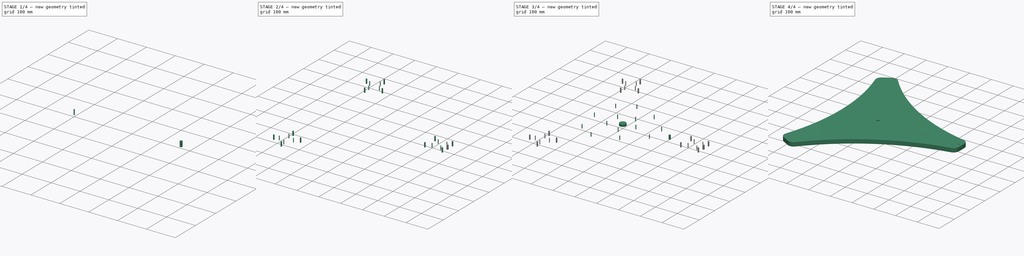
[diagram: build sequence overview — one tinted view per stage of 4, left to right]
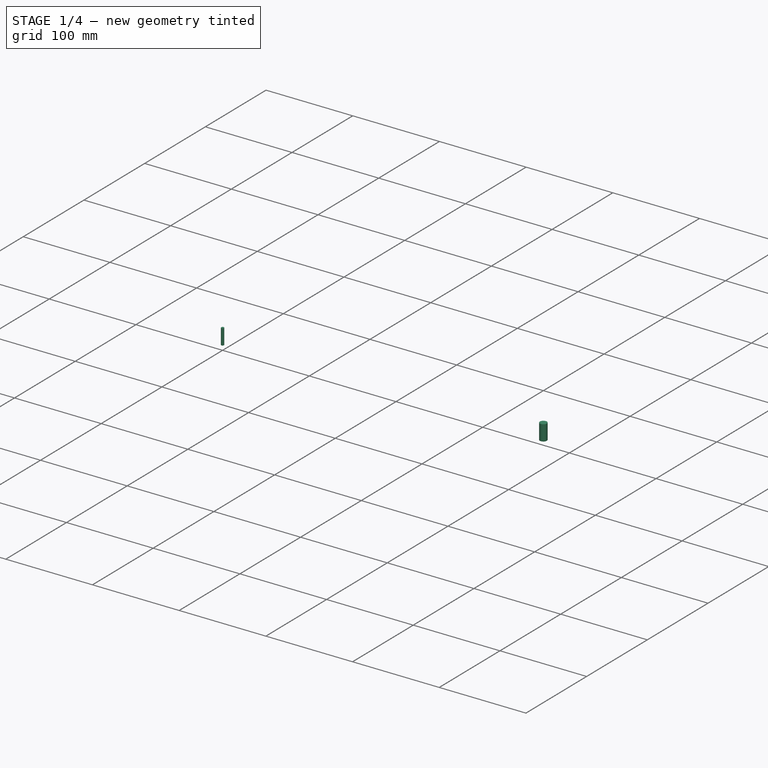
[diagram: stage 1 of 4 — iso view after this stage's code; geometry added in this stage tinted green]
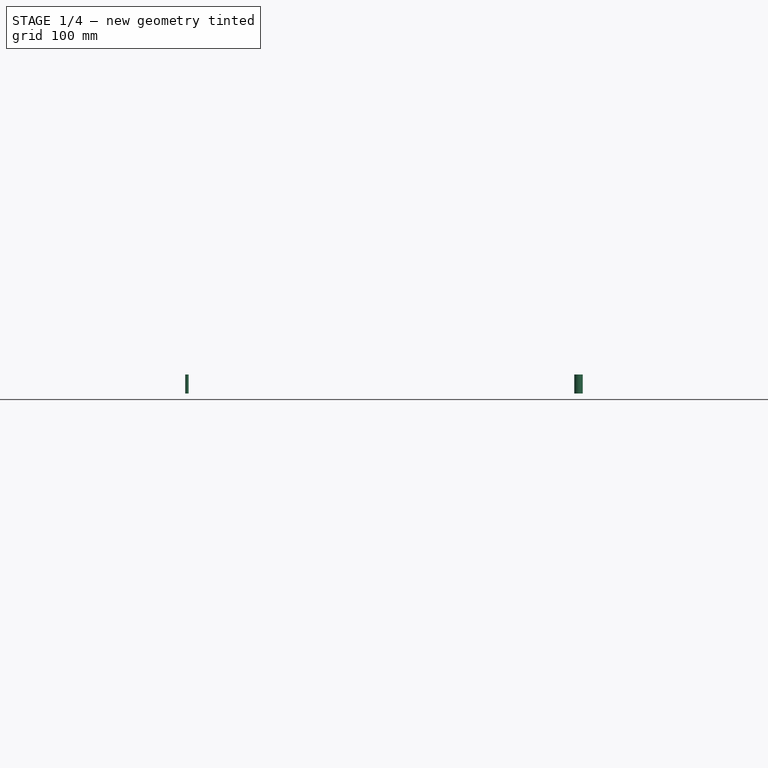
[diagram: stage 1 of 4 — front view after this stage's code; geometry added in this stage tinted green]
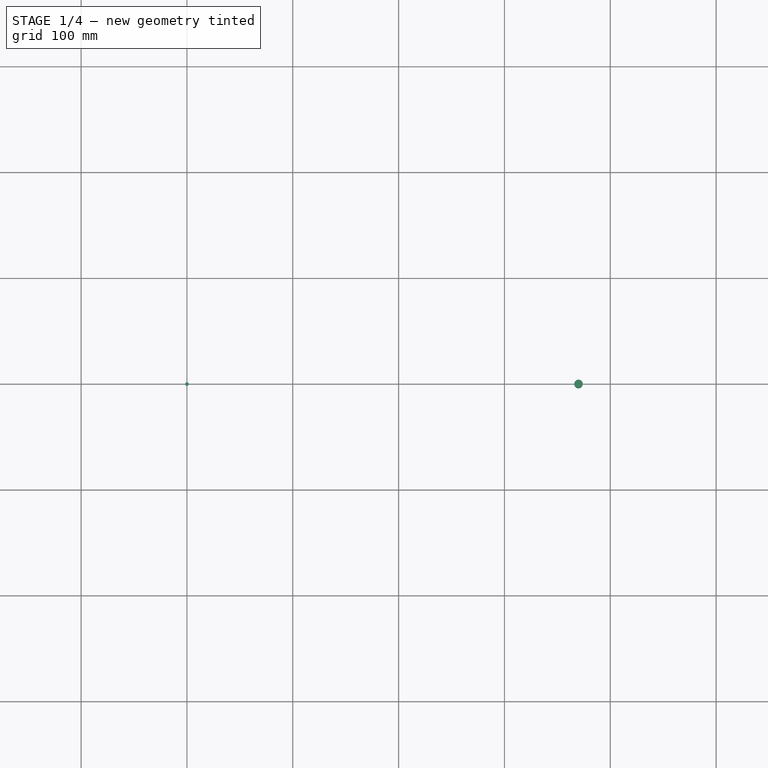
[diagram: stage 1 of 4 — top view after this stage's code; geometry added in this stage tinted green]
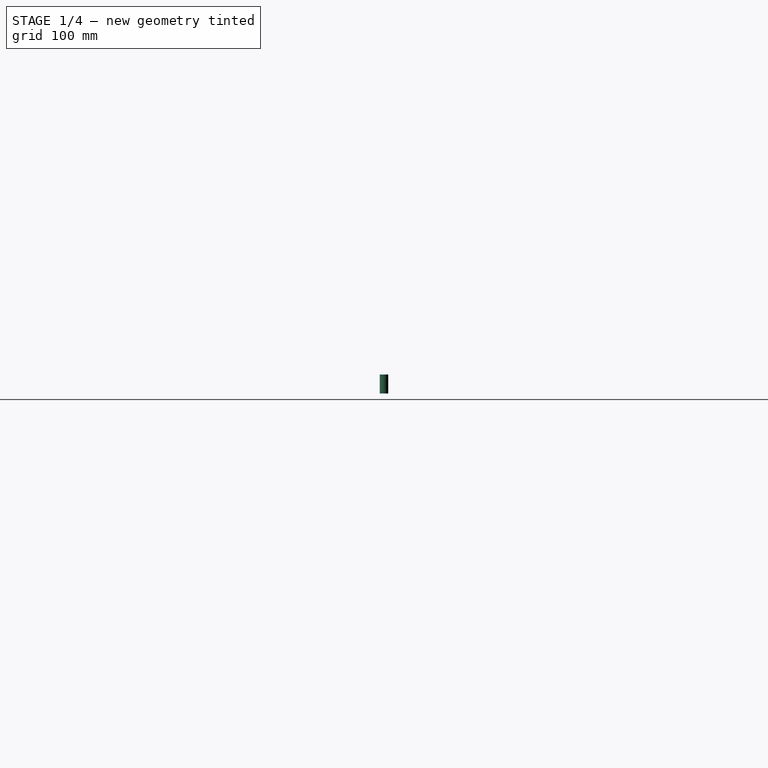
[diagram: stage 1 of 4 — right view after this stage's code; geometry added in this stage tinted green]
FCSTD DOCUMENT  (FreeCAD 1.1R38827 (Git))
Label: composit_stand3_basement_bottom_model
License: All rights reserved
LicenseURL: http://en.wikipedia.org/wiki/All_rights_reserved
objects: Part::FeaturePython×16, App::Link×9, PartDesign::CoordinateSystem×4, Part::Cylinder×3, PartDesign::SubShapeBinder×2, PartDesign::Body×2, Part::Mirroring×1, Part::Compound×1, PartDesign::Pad×1, Sketcher::SketchObject×1, PartDesign::Revolution×1, Part::MultiFuse×1, PartDesign::Boolean×1, Part::Feature×1
note: 41 computed .brp shape members not serialized (recipe doc carries the construction recipe); baked Part::Feature solids carry a one-line shape summary decoded from their .brp
EXTERNAL_REF file=composit_stand3_basement_bottom_main.FCStd obj=Sketch
EXTERNAL_REF file=composit_stand3_basement_amplifier_main.FCStd obj=Join001
EXTERNAL_REF file=composit_stand3_basement_amplifier_main.FCStd obj=Cylinder
EXTERNAL_REF file=composit_stand3_basement_bottom_main.FCStd obj=Placment001
EXTERNAL_REF file=composit_stand3_basement_bottom_main.FCStd obj=Placment
EXTERNAL_REF file=composit_stand3_bar_main.FCStd obj=Placment001
EXTERNAL_REF file=composit_stand3_bar_main.FCStd obj=Placment
EXTERNAL_REF file=composit_stand3_bar_bottom_main.FCStd obj=Join
EXTERNAL_REF file=composit_stand3_basement_bottom_main.FCStd obj=Placment002
EXTERNAL_REF file=composit_stand3_basement_bottom_main.FCStd obj=Placment003

FEATURE [App::Link] Link001  label="axis_bolt"
  LinkedObject = -> <external composit_stand3_basement_amplifier_main.FCStd>#Cylinder
FEATURE [Sketcher::SketchObject] Sketch
  ArcFitTolerance = 0
  AttachmentSupport = -> [XZ_Plane002]
  FullyConstrained = true
  MakeInternals = false
  MapMode = 5
  Placement = pos=(0,0,0) rot=(1,0,0;1.5708rad)
  expr: Constraints[9] = 28.5 / 2
  sketch-geometry (4):
    g0: LineSegment StartX=0 StartY=0 StartZ=0 EndX=14.25 EndY=0 EndZ=0
    g1: LineSegment StartX=14.25 StartY=0 StartZ=0 EndX=14.25 EndY=10 EndZ=0
    g2: LineSegment StartX=14.25 StartY=10 StartZ=0 EndX=0 EndY=10 EndZ=0
    g3: LineSegment StartX=0 StartY=10 StartZ=0 EndX=0 EndY=0 EndZ=0
  constraints (11):
    c: Coincident(g0,g1)
    c: Coincident(g1,g2)
    c: Coincident(g2,g3)
    c: Coincident(g3,g0)
    c: Horizontal(g0)
    c: Horizontal(g2)
    c: Vertical(g1)
    c: Vertical(g3)
    c: Coincident(g0,g-1)
    c: DistanceX(g1) = 14.25
    c: DistanceY(g1) = 10
FEATURE [PartDesign::Revolution] Revolution
  Angle = 360
  Angle2 = 60
  Axis = (0,2e-16,1)
  Base = (0,0,0)
  Placement = pos=(0,0,0) rot=(1,0,0;1.5708rad)
  Profile = -> Sketch
  ReferenceAxis = -> Sketch [V_Axis]
  Reversed = true
  Suppressed = false
  Type = 0
FEATURE [PartDesign::Body] Body002  label="bearing_small"
  AllowCompound = false
  Group = -> [Sketch,Revolution]
  Origin = -> Origin002
  Placement = pos=(0,0,-8) rot=(0,0,1;0rad)
  Tip = -> Revolution
FEATURE [PartDesign::CoordinateSystem] Local_CS  label="bottom_LCS"
  AttacherType = Attacher::AttachEngine3D
  AttachmentSupport = -> [XY_Plane]
  MapMode = 5
FEATURE [PartDesign::CoordinateSystem] Local_CS001  label="top_LCS"
  AttacherType = Attacher::AttachEngine3D
  AttachmentOffset = pos=(0,0,18) rot=(0,0,1;0rad)
  AttachmentSupport = -> [XY_Plane]
  MapMode = 5
  Placement = pos=(0,0,18) rot=(0,0,1;0rad)
FEATURE [App::Link] Link002  label="jamb_placement"
  LinkTransform = true
  LinkedObject = -> <external composit_stand3_basement_bottom_main.FCStd>#Placment001
FEATURE [Part::Cylinder] Cylinder001  label="hole_8mm"
  Angle = 360
  AttacherType = Attacher::AttachEngine3D
  FirstAngle = 0
  Height = 18
  Placement = pos=(0,0,0) rot=(1,0,0;3.14159rad)
  Radius = 4
  SecondAngle = 0
FEATURE [App::Link] Link008  label="wire_hole_placement"
  LinkPlacement = pos=(0,0,18) rot=(0,0,1;0rad)
  LinkTransform = true
  LinkedObject = -> <external composit_stand3_basement_bottom_main.FCStd>#Placment003
  Placement = pos=(0,0,18) rot=(0,0,1;0rad)
FEATURE [Part::FeaturePython] Populate010  label="Populate PolarArray with wire_hole_placement"  # WARN: FeaturePython — macro-defined, semantics opaque (R4)
  Copying = 0
  ExposePlacement = false
  MarkerShape = 1
  MarkerSize = 0
  NumElements = 3
  Object = -> Link008
  OutputCompounding = 0
  PlacementsTo = -> PolarArray
  Referencing = 1
  Type = lattice2PopulateCopies.LatticePopulateCopies
  isLattice = 1
FEATURE [Part::FeaturePython] Populate011  label="Populate Populate PolarArray with wire_hole_placement with hole_8mm"  # WARN: FeaturePython — macro-defined, semantics opaque (R4)
  Copying = 0
  ExposePlacement = false
  MarkerShape = 1
  MarkerSize = 0
  NumElements = 0
  Object = -> Cylinder001
  OutputCompounding = 1
  PlacementsTo = -> Link008
  Referencing = 0
  Type = lattice2PopulateCopies.LatticePopulateCopies
  isLattice = 0
FEATURE [PartDesign::Body] Body  label="bottom"
  AllowCompound = false
  Group = -> [Binder001,Pad,Boolean,Local_CS,Local_CS001,Local_CS002,Local_CS003]
  Origin = -> Origin
  Tip = -> Boolean
FEATURE [Part::Feature] Body003  label="bottom001"
  shape: bbox 604.9 x 690.2 x 18 mm, 57 faces (baked)

RESOLVED EXTERNAL PARTS (link-assembly join: the EXTERNAL_REF files above that resolve inside this repo's crawl, each included once):
---- part composit_stand3_bar_bottom_main.FCStd = doc fcstd_1e9ce9b1c1b5 ----
FCSTD DOCUMENT  (FreeCAD 1.1R38827 (Git))
Label: composit_stand3_bar_bottom_main
License: All rights reserved
LicenseURL: http://en.wikipedia.org/wiki/All_rights_reserved
objects: Part::FeaturePython×7, Sketcher::SketchObject×3, Spreadsheet::Sheet×1, Part::Feature×1, Part::Mirroring×1
note: 15 computed .brp shape members not serialized (recipe doc carries the construction recipe); baked Part::Feature solids carry a one-line shape summary decoded from their .brp

FEATURE [Part::FeaturePython] Placment  # WARN: FeaturePython — macro-defined, semantics opaque (R4)
  AttacherType = Attacher::AttachEngine3D
  ExposePlacement = true
  MarkerShape = 1
  MarkerSize = 10
  NumElements = 1
  Placement = pos=(15,40,2) rot=(0,0,1;0rad)
  Type = lattice2AttachablePlacement.AttachablePlacement
  isLattice = 1
  expr: .Placement.Base.z = <<bend_sketch>>.Constraints.thickness
FEATURE [Part::FeaturePython] Placment001  # WARN: FeaturePython — macro-defined, semantics opaque (R4)
  AttacherType = Attacher::AttachEngine3D
  ExposePlacement = true
  MarkerShape = 1
  MarkerSize = 10
  NumElements = 1
  Placement = pos=(15,-40,2) rot=(0,0,1;0rad)
  Type = lattice2AttachablePlacement.AttachablePlacement
  isLattice = 1
  expr: .Placement.Base.x = <<Placment>>.Placement.Base.x
  expr: .Placement.Base.y = -<<Placment>>.Placement.Base.y
  expr: .Placement.Base.z = <<Placment>>.Placement.Base.z
FEATURE [Part::FeaturePython] Join  label="bottom_holes_placement"  # WARN: FeaturePython — macro-defined, semantics opaque (R4)
  ExposePlacement = false
  Interleave = false
  Links = -> [Placment,Placment001]
  MarkerShape = 1
  MarkerSize = 10
  NumElements = 2
  Type = lattice2JoinArrays.JoinArrays
  isLattice = 1
FEATURE [Part::FeaturePython] Placment002  # WARN: FeaturePython — macro-defined, semantics opaque (R4)
  AttacherType = Attacher::AttachEngine3D
  ExposePlacement = true
  MarkerShape = 1
  MarkerSize = 10
  NumElements = 1
  Placement = pos=(2,42.5,9) rot=(0,1,0;1.5708rad)
  Type = lattice2AttachablePlacement.AttachablePlacement
  isLattice = 1
  expr: .Placement.Base.x = <<Properties>>.thickness
FEATURE [Part::FeaturePython] Placment003  # WARN: FeaturePython — macro-defined, semantics opaque (R4)
  AttacherType = Attacher::AttachEngine3D
  ExposePlacement = true
  MarkerShape = 1
  MarkerSize = 10
  NumElements = 1
  Placement = pos=(2,42.5,40.3333) rot=(0,1,0;1.5708rad)
  Type = lattice2AttachablePlacement.AttachablePlacement
  isLattice = 1
  expr: .Placement.Base.x = <<Properties>>.thickness
  expr: .Placement.Base.y = <<Placment002>>.Placement.Base.y
FEATURE [Part::FeaturePython] Placment004  # WARN: FeaturePython — macro-defined, semantics opaque (R4)
  AttacherType = Attacher::AttachEngine3D
  ExposePlacement = true
  MarkerShape = 1
  MarkerSize = 10
  NumElements = 1
  Placement = pos=(2,42.5,71.6667) rot=(0,1,0;1.5708rad)
  Type = lattice2AttachablePlacement.AttachablePlacement
  isLattice = 1
  expr: .Placement.Base.x = <<Properties>>.thickness
  expr: .Placement.Base.y = <<Placment002>>.Placement.Base.y
FEATURE [Part::FeaturePython] Join001  label="vert_holes_placement"  # WARN: FeaturePython — macro-defined, semantics opaque (R4)
  ExposePlacement = false
  Interleave = false
  Links = -> [Placment002,Placment003,Placment004]
  MarkerShape = 1
  MarkerSize = 10
  NumElements = 3
  Type = lattice2JoinArrays.JoinArrays
  isLattice = 1
FEATURE [Sketcher::SketchObject] Sketch  label="bend_sketch"
  ArcFitTolerance = 0
  FullyConstrained = true
  MakeInternals = false
  Placement = pos=(0,0,0) rot=(1,0,0;1.5708rad)
  expr: .Constraints.r = <<Properties>>.bend_radius
  expr: .Constraints.thickness = <<Properties>>.thickness
  sketch-geometry (4):
    g0: ArcOfCircle CenterX=4 CenterY=4 CenterZ=0 NormalX=0 NormalY=0 NormalZ=1 AngleXU=0 Radius=4 StartAngle=3.14159 EndAngle=4.71239
    g1: ArcOfCircle CenterX=4 CenterY=4 CenterZ=0 NormalX=0 NormalY=0 NormalZ=1 AngleXU=0 Radius=2 StartAngle=3.14159 EndAngle=4.71239
    g2: LineSegment StartX=4 StartY=0 StartZ=0 EndX=4 EndY=2 EndZ=0
    g3: LineSegment StartX=2.274e-11 StartY=4 StartZ=0 EndX=2 EndY=4 EndZ=0
  constraints (11):
    c: Coincident(g1,g0)
    c: Coincident(g2,g0)
    c: Coincident(g2,g1)
    c: Vertical(g2)
    c: Coincident(g3,g0)
    c: Coincident(g3,g1)
    c: Horizontal(g3)
    c: Tangent(g0,g-1) = -1.5708
    c: Tangent(g0,g-2) = 1.5708
    c: DistanceY(g2,g2) = 2  'thickness'
    c: Radius(g1) = 2  'r'
FEATURE [Spreadsheet::Sheet] Spreadsheet  label="Properties"
  cells = B2(width)==100 mm; C2(length)==25 mm; D2(height)==80 mm; E2(bend_radius)==2 mm; F2(thickness)==2 mm
FEATURE [Sketcher::SketchObject] Sketch002  label="vert_sketch"
  ArcFitTolerance = 0
  FullyConstrained = true
  MakeInternals = false
  Placement = pos=(0,0,0) rot=(0.57735,0.57735,0.57735;2.0944rad)
  expr: Constraints[11] = <<Properties>>.width
  expr: Constraints[12] = <<Properties>>.bend_radius + <<Properties>>.thickness
  expr: Constraints[19] = <<Properties>>.height
  sketch-geometry (11):
    g0: LineSegment StartX=-50 StartY=4 StartZ=0 EndX=50 EndY=4 EndZ=0
    g1: LineSegment StartX=50 StartY=4 StartZ=0 EndX=50 EndY=75 EndZ=0
    g2: LineSegment StartX=45 StartY=80 StartZ=0 EndX=40 EndY=80 EndZ=0
    g3: ArcOfCircle CenterX=-45 CenterY=4 CenterZ=0 NormalX=0 NormalY=0 NormalZ=1 AngleXU=0 Radius=5 StartAngle=2.01309 EndAngle=3.14159
    g4: ArcOfCircle CenterX=40 CenterY=75 CenterZ=0 NormalX=0 NormalY=0 NormalZ=1 AngleXU=0 Radius=5 StartAngle=1.5708 EndAngle=3.14159
    g5: ArcOfCircle CenterX=45 CenterY=75 CenterZ=0 NormalX=0 NormalY=0 NormalZ=1 AngleXU=0 Radius=5 StartAngle=-9e-16 EndAngle=1.5708
    g6: GeomPoint [constr] X=50 Y=80 Z=0
    g7: LineSegment StartX=-47.14 StartY=8.51887 StartZ=0 EndX=19.6724 EndY=40.1599 EndZ=0
    g8: ArcOfCircle CenterX=8.203 CenterY=64.3783 CenterZ=0 NormalX=0 NormalY=0 NormalZ=1 AngleXU=0 Radius=26.797 StartAngle=5.15468 EndAngle=6.28319
    g9: LineSegment StartX=35 StartY=75 StartZ=0 EndX=35 EndY=64.3783 EndZ=0
    g10: LineSegment [constr] StartX=35 StartY=64.3783 StartZ=0 EndX=35 EndY=0 EndZ=0
  constraints (28):
    c: Coincident(g0,g1)
    c: Vertical(g1)
    c: Horizontal(g2)
    c: PointOnObject(g3,g0)
    c: Coincident(g3,g0)
    c: Tangent(g2,g4) = -1.5708
    c: PointOnObject(g6,g2)
    c: PointOnObject(g6,g1)
    c: Tangent(g2,g5) = -1.5708
    c: Tangent(g1,g5) = -1.5708
    c: Symmetric(g0,g0,g-2)
    c: DistanceX(g0,g0) = 100
    c: DistanceY(g0) = 4
    c: Equal(g5,g4)
    c: Radius(g5) = 5
    c: Tangent(g8,g7) = -1.5708
    c: Tangent(g7,g3) = 1.5708
    c: PointOnObject(g10,g-1)
    c: DistanceX(g4,g1) = 15
    c: DistanceY(g6) = 80
    c: Radius(g3) = 5
    c: Coincident(g9,g10)
    c: Vertical(g9)
    c: Vertical(g10)
    c: Tangent(g8,g9) = 1.5708
    c: Radius(g8) = 26.797
    c: Tangent(g9,g4) = -1.5708
    c: Angle(g7) = 0.442289
FEATURE [Part::Feature] Body163  label="pillar_bottom_material_0.30ansi002"
  Placement = pos=(0,0,0) rot=(0,0,1;1.5708rad)
  shape: bbox 25 x 100 x 80 mm, 23 faces (baked)
FEATURE [Part::Mirroring] Part__Mirroring  label="pillar_bottom_material_0.30ansi002 (Mirror #1)"
  Base = (0,0,0)
  Normal = (0,1,0)
  Source = -> Body163
FEATURE [Sketcher::SketchObject] Sketch001  label="bottom_sketch"
  ArcFitTolerance = 0
  ExternalGeometry = -> [Part__Mirroring]
  FullyConstrained = true
  MakeInternals = false
  expr: Constraints[4] = <<Properties>>.width
  expr: Constraints[5] = <<Properties>>.length
  expr: Constraints[6] = <<Properties>>.bend_radius + <<Properties>>.thickness
  sketch-geometry (6):
    g0: LineSegment StartX=4 StartY=50 StartZ=0 EndX=4 EndY=-50 EndZ=0
    g1: LineSegment StartX=25 StartY=-29 StartZ=0 EndX=25 EndY=29 EndZ=0
    g2: GeomPoint [constr] X=14.5 Y=0 Z=0
    g3: GeomPoint [constr] X=25 Y=50 Z=0
    g4: ArcOfCircle CenterX=4 CenterY=29 CenterZ=0 NormalX=0 NormalY=0 NormalZ=1 AngleXU=0 Radius=21 StartAngle=1e-16 EndAngle=1.5708
    g5: ArcOfCircle CenterX=4 CenterY=-29 CenterZ=0 NormalX=0 NormalY=0 NormalZ=1 AngleXU=0 Radius=21 StartAngle=4.71239 EndAngle=6.28319
  constraints (16):
    c: Vertical(g0)
    c: Vertical(g1)
    c: Symmetric(g0,g3,g2)
    c: PointOnObject(g2,g-1)
    c: DistanceY(g0,g3) = 100
    c: DistanceX(g3) = 25
    c: DistanceX(g0) = 4
    c: PointOnObject(g3,g1)
    c: Tangent(g4,g1) = -1.5708
    c: Radius(g4) = 21
    c: Coincident(g4,g0)
    c: PointOnObject(g4,g0)
    c: Horizontal(g0,g3)
    c: PointOnObject(g5,g0)
    c: Coincident(g5,g0)
    c: Tangent(g5,g1) = -1.5708
---- part composit_stand3_bar_main.FCStd = doc fcstd_660642a5c5ee ----
FCSTD DOCUMENT  (FreeCAD 1.1R38827 (Git))
Label: composit_stand3_bar_main
License: All rights reserved
LicenseURL: http://en.wikipedia.org/wiki/All_rights_reserved
objects: Part::FeaturePython×4, Sketcher::SketchObject×2, Spreadsheet::Sheet×1, PartDesign::SubShapeBinder×1
note: 9 computed .brp shape members not serialized (recipe doc carries the construction recipe); baked Part::Feature solids carry a one-line shape summary decoded from their .brp
EXTERNAL_REF file=composit_stand3_bar_bottom_main.FCStd obj=Spreadsheet
EXTERNAL_REF file=../ULZ-P02-14W.FCStd obj=Sketch

FEATURE [Sketcher::SketchObject] Sketch  label="base_Sketch"
  ArcFitTolerance = 0
  FullyConstrained = true
  MakeInternals = false
  expr: .Constraints.length = <<Properties>>.length
  expr: .Constraints.width = <<Properties>>.width
  sketch-geometry (5):
    g0: LineSegment StartX=19 StartY=18.3 StartZ=0 EndX=0 EndY=18.3 EndZ=0
    g1: LineSegment StartX=0 StartY=18.3 StartZ=0 EndX=0 EndY=-18.3 EndZ=0
    g2: LineSegment StartX=0 StartY=-18.3 StartZ=0 EndX=19 EndY=-18.3 EndZ=0
    g3: LineSegment [constr] StartX=19 StartY=-18.3 StartZ=0 EndX=19 EndY=18.3 EndZ=0
    g4: GeomPoint [constr] X=9.5 Y=0 Z=0
  constraints (13):
    c: Coincident(g0,g1)
    c: Coincident(g1,g2)
    c: Coincident(g2,g3)
    c: Coincident(g3,g0)
    c: Horizontal(g0)
    c: Horizontal(g2)
    c: Vertical(g1)
    c: Vertical(g3)
    c: Symmetric(g2,g0,g4)
    c: PointOnObject(g4,g-1)
    c: PointOnObject(g1,g-2)
    c: DistanceX(g1,g0) = 19  'length'
    c: DistanceY(g1,g0) = 36.6  'width'
FEATURE [Spreadsheet::Sheet] Spreadsheet  label="Properties"
  cells = B2(width)==36.6 mm; C2(length)==19 mm; D2(height)==1684 mm; E2(thickness)==2 mm
FEATURE [Part::FeaturePython] Placment  label="bottom_placement"  # WARN: FeaturePython — macro-defined, semantics opaque (R4)
  AttacherType = Attacher::AttachEngine3D
  ExposePlacement = true
  MarkerShape = 1
  MarkerSize = 10
  NumElements = 1
  Placement = pos=(54,18.3,0) rot=(0,0,1;1.5708rad)
  Type = lattice2AttachablePlacement.AttachablePlacement
  isLattice = 1
  expr: .Placement.Base.x = <<composit_stand3_bar_bottom_main>>#<<Properties>>.width / 2 + 4 mm
  expr: .Placement.Base.y = <<Properties>>.width / 2
FEATURE [Part::FeaturePython] Placment001  label="bottom_placement2"  # WARN: FeaturePython — macro-defined, semantics opaque (R4)
  AttacherType = Attacher::AttachEngine3D
  ExposePlacement = true
  MarkerShape = 1
  MarkerSize = 10
  NumElements = 1
  Placement = pos=(54,-18.3,0) rot=(0,0,-1;1.5708rad)
  Type = lattice2AttachablePlacement.AttachablePlacement
  isLattice = 1
  expr: .Placement.Base.x = <<bottom_placement>>.Placement.Base.x
  expr: .Placement.Base.y = -<<bottom_placement>>.Placement.Base.y
FEATURE [Part::FeaturePython] Placment003  label="lamp_placement"  # WARN: FeaturePython — macro-defined, semantics opaque (R4)
  AttacherType = Attacher::AttachEngine3D
  ExposePlacement = true
  MarkerShape = 1
  MarkerSize = 20
  NumElements = 1
  Placement = pos=(0,0,1060) rot=(0.57735,0.57735,0.57735;2.0944rad)
  Type = lattice2AttachablePlacement.AttachablePlacement
  isLattice = 1
  expr: .Placement.Base.z = <<Properties>>.height - 624 mm
FEATURE [Part::FeaturePython] Placment004  label="top_part_placement"  # WARN: FeaturePython — macro-defined, semantics opaque (R4)
  AttacherType = Attacher::AttachEngine3D
  ExposePlacement = true
  MarkerShape = 1
  MarkerSize = 20
  NumElements = 1
  Placement = pos=(2,0,1678) rot=(0,0,1;0rad)
  Type = lattice2AttachablePlacement.AttachablePlacement
  isLattice = 1
  expr: .Placement.Base.x = <<Properties>>.thickness
  expr: .Placement.Base.z = <<Properties>>.height - 6 mm
FEATURE [PartDesign::SubShapeBinder] Binder  label="lamp_holes_import"
  BindCopyOnChange = 0
  BindMode = 0
  ClaimChildren = false
  Fuse = false
  MakeFace = true
  OffsetFill = false
  OffsetIntersection = false
  OffsetJoinType = 0
  OffsetOpenResult = false
  PartialLoad = false
  Relative = true
  Support = -> [<external ../ULZ-P02-14W.FCStd>#Sketch]
  _Version = 2
FEATURE [Sketcher::SketchObject] Sketch001  label="lamp_holes_sketch"
  ArcFitTolerance = 0
  ExternalGeometry = -> [Binder]
  FullyConstrained = true
  MakeInternals = false
  sketch-geometry (12):
    g0: Circle CenterX=-4.15 CenterY=445 CenterZ=0 NormalX=0 NormalY=0 NormalZ=1 AngleXU=0 Radius=1.7
    g1: Circle CenterX=4.15 CenterY=445 CenterZ=0 NormalX=0 NormalY=0 NormalZ=1 AngleXU=0 Radius=1.7
    g2: ArcOfCircle CenterX=4.15 CenterY=-446 CenterZ=0 NormalX=0 NormalY=0 NormalZ=1 AngleXU=0 Radius=1.7 StartAngle=3.14159 EndAngle=6.28319
    g3: ArcOfCircle CenterX=4.15 CenterY=-444 CenterZ=0 NormalX=0 NormalY=0 NormalZ=1 AngleXU=0 Radius=1.7 StartAngle=-2.7e-15 EndAngle=3.14159
    g4: LineSegment StartX=2.45 StartY=-446 StartZ=0 EndX=2.45 EndY=-444 EndZ=0
    g5: LineSegment StartX=5.85 StartY=-446 StartZ=0 EndX=5.85 EndY=-444 EndZ=0
    g6: ArcOfCircle CenterX=-4.15 CenterY=-446 CenterZ=0 NormalX=0 NormalY=0 NormalZ=1 AngleXU=0 Radius=1.7 StartAngle=3.14159 EndAngle=6.28319
    g7: ArcOfCircle CenterX=-4.15 CenterY=-444 CenterZ=0 NormalX=0 NormalY=0 NormalZ=1 AngleXU=0 Radius=1.7 StartAngle=1.11e-14 EndAngle=3.14159
    g8: LineSegment StartX=-5.85 StartY=-446 StartZ=0 EndX=-5.85 EndY=-444 EndZ=0
    g9: LineSegment StartX=-2.45 StartY=-446 StartZ=0 EndX=-2.45 EndY=-444 EndZ=0
    g10: LineSegment [constr] StartX=4.15 StartY=-446 StartZ=0 EndX=4.15 EndY=-445 EndZ=0
    g11: LineSegment [constr] StartX=4.15 StartY=-445 StartZ=0 EndX=4.15 EndY=-444 EndZ=0
  constraints (26):
    c: Coincident(g0,g-3)
    c: Tangent(g2,g4) = 1.5708
    c: Tangent(g2,g5) = -1.5708
    c: Tangent(g3,g4) = 1.5708
    c: Tangent(g3,g5) = -1.5708
    c: Equal(g2,g3)
    c: Vertical(g4)
    c: Tangent(g6,g8) = 1.5708
    c: Tangent(g6,g9) = -1.5708
    c: Tangent(g7,g8) = 1.5708
    c: Tangent(g7,g9) = -1.5708
    c: Equal(g6,g7)
    c: Equal(g7,g3)
    c: Equal(g0,g1)
    c: Diameter(g0) = 3.4
    c: Symmetric(g1,g0,g-2)
    c: Symmetric(g3,g7,g-2)
    c: Symmetric(g6,g2,g-2)
    c: Coincident(g10,g2)
    c: Coincident(g10,g-4)
    c: Vertical(g10)
    c: Coincident(g10,g11)
    c: Coincident(g11,g3)
    c: DistanceY(g10,g10) = 1
    c: DistanceY(g11,g11) = 1
    c: Equal(g7,g0)
---- part composit_stand3_basement_amplifier_main.FCStd = doc fcstd_07f535898d8e ----
FCSTD DOCUMENT  (FreeCAD 1.1R38827 (Git))
Label: composit_stand3_basement_amplifier_main
License: All rights reserved
LicenseURL: http://en.wikipedia.org/wiki/All_rights_reserved
objects: Part::FeaturePython×7, PartDesign::SubShapeBinder×2, Sketcher::SketchObject×2, App::Link×1, Part::Cylinder×1, PartDesign::Revolution×1, PartDesign::Body×1
note: 18 computed .brp shape members not serialized (recipe doc carries the construction recipe); baked Part::Feature solids carry a one-line shape summary decoded from their .brp
EXTERNAL_REF file=composit_stand3_basement_bottom_main.FCStd obj=Sketch
EXTERNAL_REF file=composit_stand3_basement_top_main.FCStd obj=Sketch
EXTERNAL_REF file=composit_stand3_basement_bearing_holder_main.FCStd obj=Join

FEATURE [PartDesign::SubShapeBinder] Binder
  BindCopyOnChange = 0
  BindMode = 0
  ClaimChildren = false
  Fuse = false
  MakeFace = true
  OffsetFill = false
  OffsetIntersection = false
  OffsetJoinType = 0
  OffsetOpenResult = false
  PartialLoad = false
  Relative = true
  Support = -> [<external composit_stand3_basement_bottom_main.FCStd>#Sketch]
  _Version = 2
FEATURE [PartDesign::SubShapeBinder] Binder001
  BindCopyOnChange = 0
  BindMode = 0
  ClaimChildren = false
  Fuse = false
  MakeFace = true
  OffsetFill = false
  OffsetIntersection = false
  OffsetJoinType = 0
  OffsetOpenResult = false
  PartialLoad = false
  Relative = true
  Support = -> [<external composit_stand3_basement_top_main.FCStd>#Sketch]
  _Version = 2
FEATURE [Sketcher::SketchObject] Sketch
  ArcFitTolerance = 0
  ExternalGeometry = -> [Binder001]
  FullyConstrained = true
  MakeInternals = false
  expr: Constraints[6] = <<composit_stand3_basement_bottom_main>>#<<basement_bottom_main_sketch>>.Constraints.min_r - 20 mm
  sketch-geometry (5):
    g0: LineSegment [constr] StartX=0 StartY=0 StartZ=0 EndX=75 EndY=129.904 EndZ=0
    g1: ArcOfCircle CenterX=-272.703 CenterY=-472.335 CenterZ=0 NormalX=0 NormalY=0 NormalZ=1 AngleXU=0 Radius=695.406 StartAngle=0.871298 EndAngle=1.0472
    g2: ArcOfCircle CenterX=155.708 CenterY=36.8099 CenterZ=0 NormalX=0 NormalY=0 NormalZ=1 AngleXU=0 Radius=30 StartAngle=0.232142 EndAngle=0.871298
    g3: ArcOfCircle CenterX=0 CenterY=0 CenterZ=0 NormalX=0 NormalY=0 NormalZ=1 AngleXU=0 Radius=190 StartAngle=0 EndAngle=0.232142
    g4: Circle [constr] CenterX=0 CenterY=0 CenterZ=0 NormalX=0 NormalY=0 NormalZ=1 AngleXU=0 Radius=545.406
  constraints (14):
    c: Coincident(g0,g-1)
    c: Angle(g0) = 1.0472
    c: Coincident(g1,g0)
    c: PointOnObject(g3,g-1)
    c: Tangent(g3,g2) = -1.5708
    c: Tangent(g2,g1) = -1.5708
    c: Distance(g0) = 150
    c: Coincident(g4,g0)
    c: PointOnObject(g-3,g4)
    c: Coincident(g1,g-3)
    c: DistanceX(g3) = 190
    c: Radius(g2) = 30
    c: PointOnObject(g3,g-1)
    c: PointOnObject(g3,g-2)
FEATURE [Part::FeaturePython] Placment  # WARN: FeaturePython — macro-defined, semantics opaque (R4)
  AttacherType = Attacher::AttachEngine3D
  ExposePlacement = true
  MarkerShape = 1
  MarkerSize = 20
  NumElements = 1
  Placement = pos=(65,112.583,0) rot=(0,0,1;0rad)
  Type = lattice2AttachablePlacement.AttachablePlacement
  isLattice = 1
  expr: .Placement.Base.y = .Placement.Base.x * tan(60)
FEATURE [Part::FeaturePython] Placment001  # WARN: FeaturePython — macro-defined, semantics opaque (R4)
  AttacherType = Attacher::AttachEngine3D
  ExposePlacement = true
  MarkerShape = 1
  MarkerSize = 20
  NumElements = 1
  Placement = pos=(150,40,0) rot=(0,0,1;0rad)
  Type = lattice2AttachablePlacement.AttachablePlacement
  isLattice = 1
FEATURE [Part::FeaturePython] Mirror  label="Mirror of Placment001"  # WARN: FeaturePython — macro-defined, semantics opaque (R4)
  ExposePlacement = false
  FlipX = false
  FlipY = true
  FlipZ = false
  MarkerShape = 1
  MarkerSize = 20
  NumElements = 1
  Object = -> Placment001
  ObjectTraversal = 0
  PivotPlacement = pos=(0,0,0) rot=(0,0,1;1.0472rad)
  Type = lattice2Mirror.LatticeMirror
  isLattice = 1
FEATURE [Part::FeaturePython] Join  # WARN: FeaturePython — macro-defined, semantics opaque (R4)
  ExposePlacement = false
  Interleave = false
  Links = -> [Placment,Placment001,Mirror]
  MarkerShape = 1
  MarkerSize = 0
  NumElements = 3
  Type = lattice2JoinArrays.JoinArrays
  isLattice = 1
FEATURE [Part::FeaturePython] PolarArray  # WARN: FeaturePython — macro-defined, semantics opaque (R4)
  Alignment = 0
  AttacherType = Attacher::AttachEngine3D
  CellStart = A1
  Count = 3
  DistributionLaw = 0
  EndInclusive = false
  ExposePlacement = false
  FlipX = false
  FlipZ = false
  GeneratorMode = 0
  MarkerShape = 1
  MarkerSize = 0
  NumElements = 3
  OrientMode = 2
  Radius = 100
  Reverse = false
  SpanEnd = 360
  SpanStart = 0
  Step = 120
  Type = lattice2PolarArray2.PolarArray
  UseArcRadius = false
  UseArcRange = 0
  VSGVersion = 1
  Values = 0.0 | 120.0 | 240.0
  ValuesSource = 2
  isLattice = 1
FEATURE [Part::FeaturePython] Populate  label="Populate PolarArray with Join"  # WARN: FeaturePython — macro-defined, semantics opaque (R4)
  Copying = 0
  ExposePlacement = false
  MarkerShape = 1
  MarkerSize = 0
  NumElements = 9
  Object = -> Join
  OutputCompounding = 0
  PlacementsTo = -> PolarArray
  Referencing = 1
  Type = lattice2PopulateCopies.LatticePopulateCopies
  isLattice = 1
FEATURE [App::Link] Link  label="bearing_holes_placements"
  LinkedObject = -> <external composit_stand3_basement_bearing_holder_main.FCStd>#Join
FEATURE [Part::FeaturePython] Join001  label="holes_placements"  # WARN: FeaturePython — macro-defined, semantics opaque (R4)
  ExposePlacement = false
  Interleave = false
  Links = -> [Populate,Link]
  MarkerShape = 1
  MarkerSize = 0
  NumElements = 14
  Type = lattice2JoinArrays.JoinArrays
  isLattice = 1
FEATURE [Part::Cylinder] Cylinder  label="axis_bolt"
  Angle = 360
  AttacherType = Attacher::AttachEngine3D
  FirstAngle = 0
  Height = 20
  Radius = 6
  SecondAngle = 0
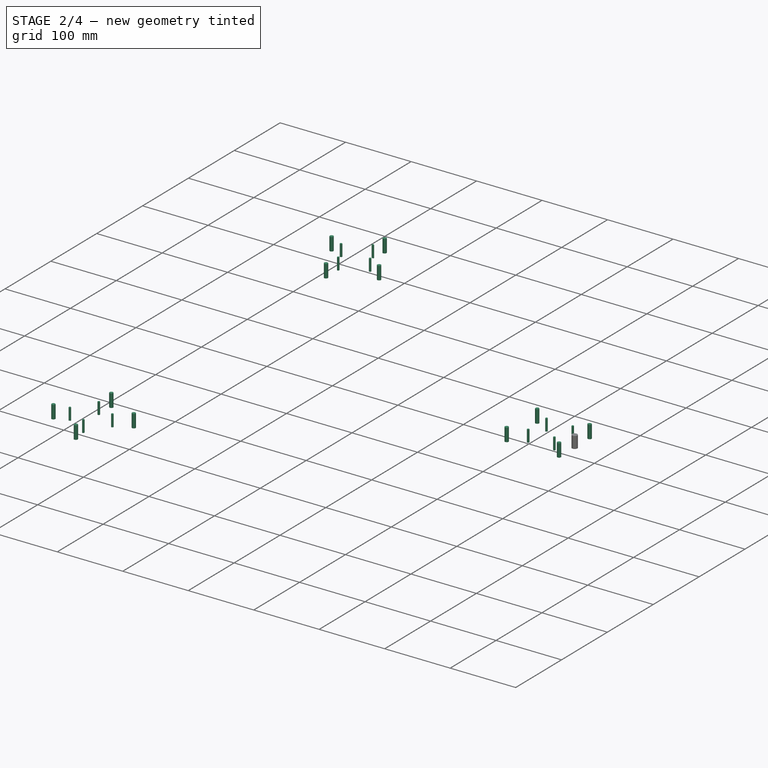
[diagram: stage 2 of 4 — iso view after this stage's code; geometry added in this stage tinted green]
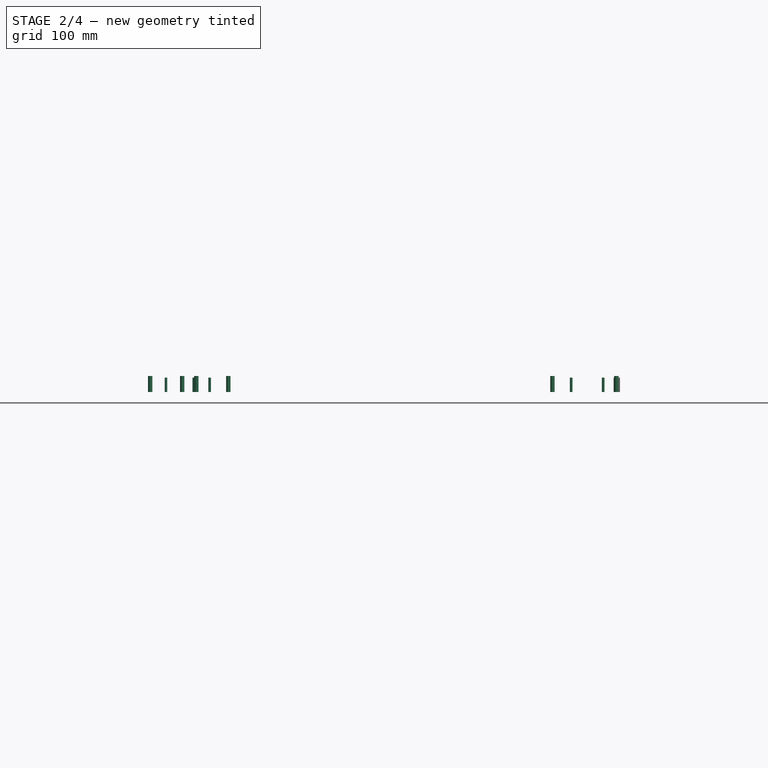
[diagram: stage 2 of 4 — front view after this stage's code; geometry added in this stage tinted green]
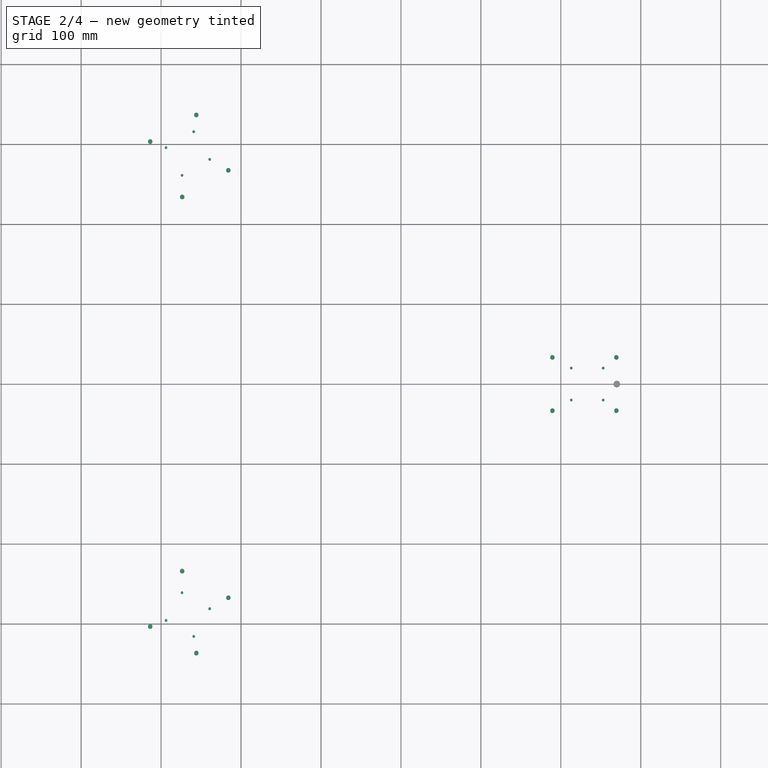
[diagram: stage 2 of 4 — top view after this stage's code; geometry added in this stage tinted green]
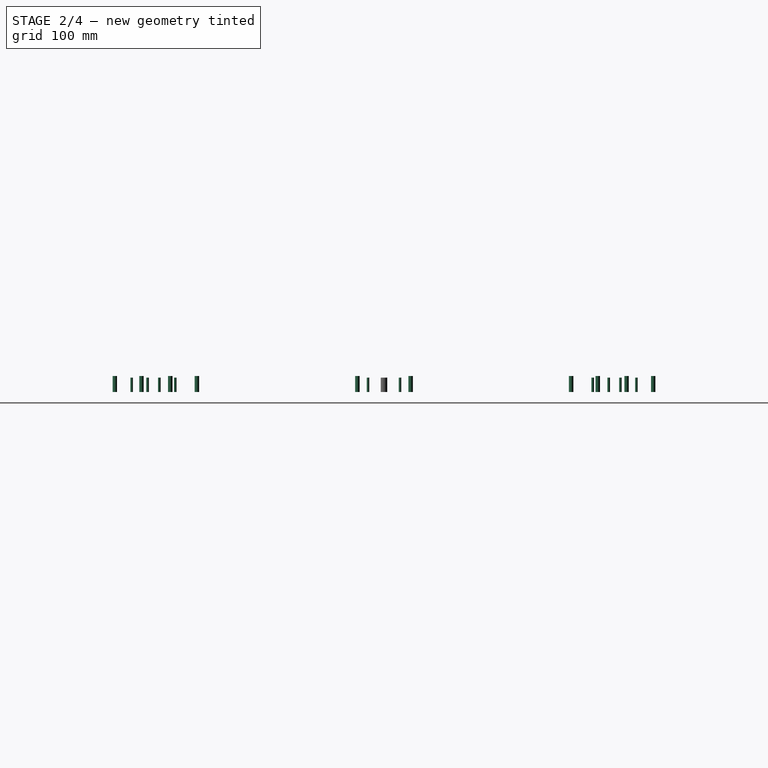
[diagram: stage 2 of 4 — right view after this stage's code; geometry added in this stage tinted green]
FEATURE [PartDesign::CoordinateSystem] Local_CS002
  AttacherType = Attacher::AttachEngine3D
  AttachmentOffset = pos=(215,0,21) rot=(0,0,1;0rad)
  AttachmentSupport = -> [XY_Plane]
  MapMode = 5
  Placement = pos=(215,0,21) rot=(0,0,1;0rad)
  expr: AttachmentOffset = <<jamb_placement>>.LinkedObject.Placement * placement(vector(0; 0; 3); rotation(0; 0; 0))
FEATURE [App::Link] Link003  label="bar_placement"
  LinkTransform = true
  LinkedObject = -> <external composit_stand3_basement_bottom_main.FCStd>#Placment
FEATURE [Part::FeaturePython] Populate003  label="Populate PolarArray with bar_placement"  # WARN: FeaturePython — macro-defined, semantics opaque (R4)
  Copying = 0
  ExposePlacement = false
  MarkerShape = 1
  MarkerSize = 0
  NumElements = 3
  Object = -> Link003
  OutputCompounding = 0
  PlacementsTo = -> PolarArray
  Referencing = 1
  Type = lattice2PopulateCopies.LatticePopulateCopies
  isLattice = 1
FEATURE [App::Link] Link004  label="bottom_placement2"
  LinkTransform = true
  LinkedObject = -> <external composit_stand3_bar_main.FCStd>#Placment001
FEATURE [App::Link] Link005  label="bottom_placement"
  LinkTransform = true
  LinkedObject = -> <external composit_stand3_bar_main.FCStd>#Placment
FEATURE [Part::FeaturePython] Join  # WARN: FeaturePython — macro-defined, semantics opaque (R4)
  ExposePlacement = false
  Interleave = false
  Links = -> [Link005,Link004]
  MarkerShape = 1
  MarkerSize = 0
  NumElements = 2
  Type = lattice2JoinArrays.JoinArrays
  isLattice = 1
FEATURE [App::Link] Link006  label="bottom_holes_placement"
  LinkedObject = -> <external composit_stand3_bar_bottom_main.FCStd>#Join
FEATURE [Part::FeaturePython] Populate004  label="Populate Join with bottom_holes_placement"  # WARN: FeaturePython — macro-defined, semantics opaque (R4)
  Copying = 0
  ExposePlacement = false
  MarkerShape = 1
  MarkerSize = 0
  NumElements = 4
  Object = -> Link006
  OutputCompounding = 0
  PlacementsTo = -> Join
  Referencing = 0
  Type = lattice2PopulateCopies.LatticePopulateCopies
  isLattice = 1
FEATURE [Part::FeaturePython] Populate005  label="Populate Populate PolarArray with bar_placement with Populate Join with bottom_holes_placement"  # WARN: FeaturePython — macro-defined, semantics opaque (R4)
  Copying = 0
  ExposePlacement = false
  MarkerShape = 1
  MarkerSize = 0
  NumElements = 12
  Object = -> Populate004
  OutputCompounding = 0
  PlacementsTo = -> Populate003
  Referencing = 0
  Type = lattice2PopulateCopies.LatticePopulateCopies
  isLattice = 1
FEATURE [Part::Cylinder] Cylinder002  label="hole_5.5mm"
  Angle = 360
  AttacherType = Attacher::AttachEngine3D
  FirstAngle = 0
  Height = 20
  Placement = pos=(0,0,0) rot=(1,0,0;3.14159rad)
  Radius = 2.75
  SecondAngle = 0
FEATURE [Part::FeaturePython] Populate006  label="Populate Populate Populate PolarArray with bar_placement with Populate Join with bottom_holes_placement with hole_5.5mm"  # WARN: FeaturePython — macro-defined, semantics opaque (R4)
  Copying = 0
  ExposePlacement = false
  MarkerShape = 1
  MarkerSize = 0
  NumElements = 0
  Object = -> Cylinder002
  OutputCompounding = 1
  PlacementsTo = -> Populate005
  Referencing = 0
  Type = lattice2PopulateCopies.LatticePopulateCopies
  isLattice = 0
FEATURE [PartDesign::CoordinateSystem] Local_CS003  label="bar_LCS"
  AttacherType = Attacher::AttachEngine3D
  AttachmentOffset = pos=(383.5,0,21) rot=(0,0,1;3.14159rad)
  AttachmentSupport = -> [XY_Plane]
  MapMode = 5
  Placement = pos=(383.5,0,21) rot=(0,0,1;3.14159rad)
  expr: AttachmentOffset = <<bar_placement>>.LinkedObject.Placement * placement(vector(0; 0; 3); rotation(0; 0; 0))
FEATURE [App::Link] Link007  label="wheel_placement"
  LinkTransform = true
  LinkedObject = -> <external composit_stand3_basement_bottom_main.FCStd>#Placment002
FEATURE [Part::FeaturePython] PolarArray001  # WARN: FeaturePython — macro-defined, semantics opaque (R4)
  Alignment = 0
  AttacherType = Attacher::AttachEngine3D
  CellStart = A1
  Count = 4
  DistributionLaw = 0
  EndInclusive = false
  ExposePlacement = false
  FlipX = false
  FlipZ = false
  GeneratorMode = 0
  MarkerShape = 1
  MarkerSize = 0
  NumElements = 4
  OrientMode = 2
  Placement = pos=(0,0,0) rot=(0,0,1;0.785398rad)
  Radius = 28.2843
  Reverse = false
  SpanEnd = 360
  SpanStart = 0
  Step = 90
  Type = lattice2PolarArray2.PolarArray
  UseArcRadius = false
  UseArcRange = 0
  VSGVersion = 1
  Values = 0.0 | 90.0 | 180.0 | 270.0
  ValuesSource = 2
  isLattice = 1
  expr: Radius = 20 mm * sqrt(2)
FEATURE [Part::FeaturePython] Populate007  label="Populate PolarArray with wheel_placement"  # WARN: FeaturePython — macro-defined, semantics opaque (R4)
  Copying = 0
  ExposePlacement = false
  MarkerShape = 1
  MarkerSize = 0
  NumElements = 3
  Object = -> Link007
  OutputCompounding = 0
  PlacementsTo = -> PolarArray
  Referencing = 1
  Type = lattice2PopulateCopies.LatticePopulateCopies
  isLattice = 1
FEATURE [Part::FeaturePython] Populate008  label="Populate Populate PolarArray with wheel_placement with PolarArray001"  # WARN: FeaturePython — macro-defined, semantics opaque (R4)
  Copying = 0
  ExposePlacement = false
  MarkerShape = 1
  MarkerSize = 0
  NumElements = 12
  Object = -> PolarArray001
  OutputCompounding = 0
  PlacementsTo = -> Populate007
  Referencing = 0
  Type = lattice2PopulateCopies.LatticePopulateCopies
  isLattice = 1
FEATURE [Part::FeaturePython] Populate009  label="Populate Populate Populate PolarArray with wheel_placement with PolarArray001 with hole_3.2mm"  # WARN: FeaturePython — macro-defined, semantics opaque (R4)
  Copying = 0
  ExposePlacement = false
  MarkerShape = 1
  MarkerSize = 0
  NumElements = 0
  Object = -> Cylinder
  OutputCompounding = 1
  PlacementsTo = -> Populate008
  Referencing = 0
  Type = lattice2PopulateCopies.LatticePopulateCopies
  isLattice = 0
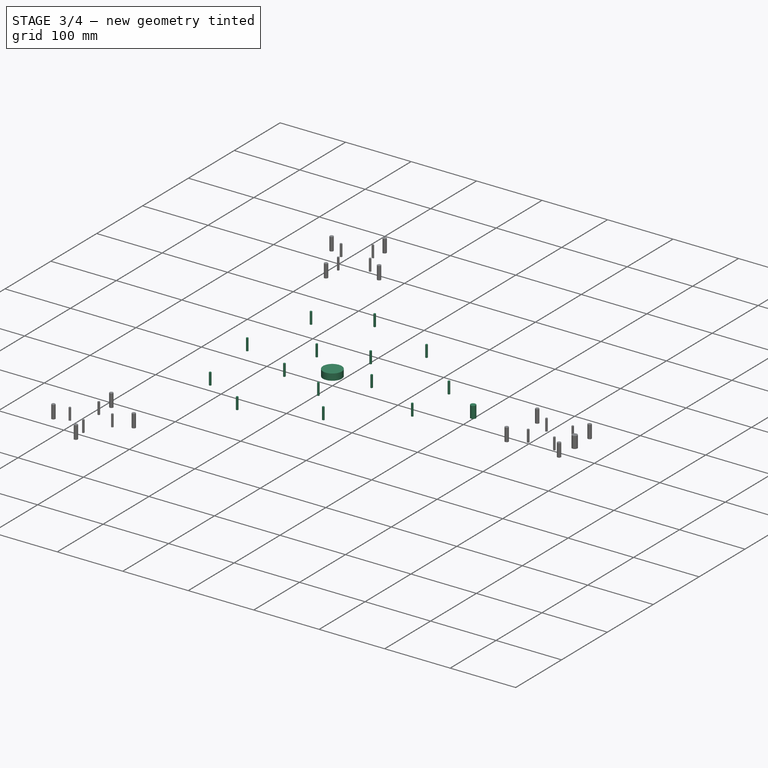
[diagram: stage 3 of 4 — iso view after this stage's code; geometry added in this stage tinted green]
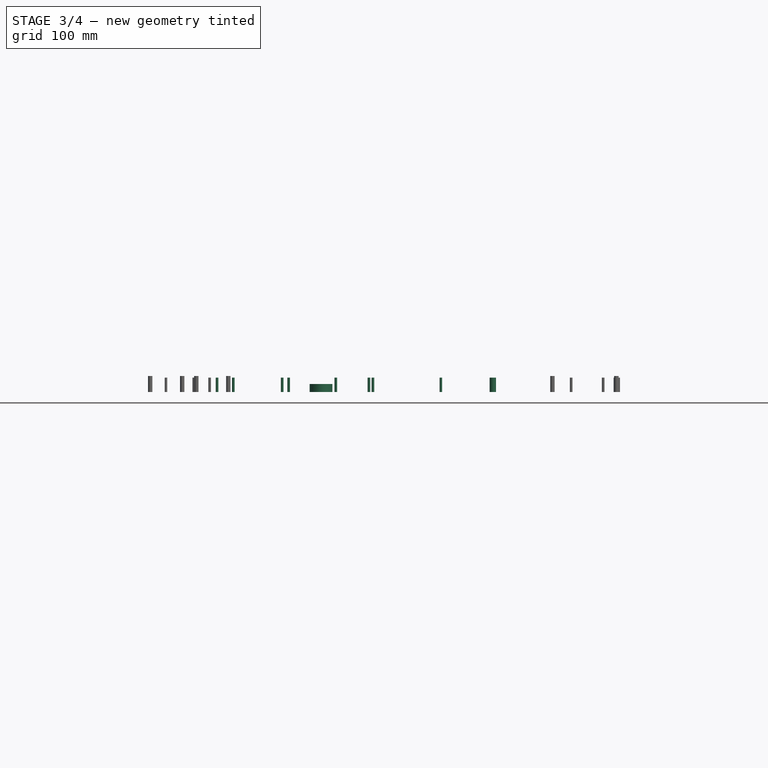
[diagram: stage 3 of 4 — front view after this stage's code; geometry added in this stage tinted green]
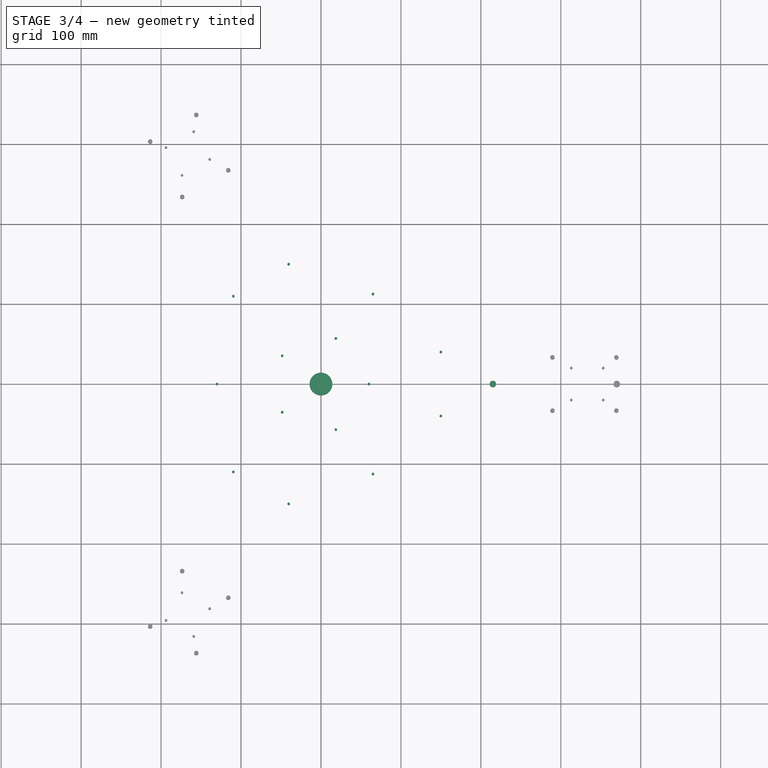
[diagram: stage 3 of 4 — top view after this stage's code; geometry added in this stage tinted green]
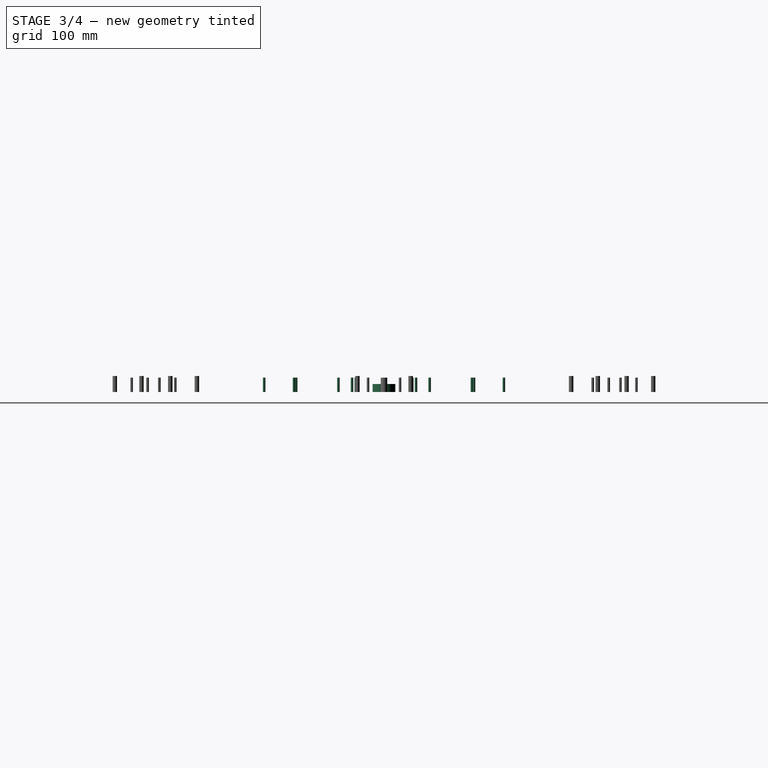
[diagram: stage 3 of 4 — right view after this stage's code; geometry added in this stage tinted green]
FEATURE [App::Link] Link  label="holes_placements"
  LinkedObject = -> <external composit_stand3_basement_amplifier_main.FCStd>#Join001
FEATURE [Part::Cylinder] Cylinder  label="hole_3.2mm"
  Angle = 360
  AttacherType = Attacher::AttachEngine3D
  FirstAngle = 0
  Height = 18
  Radius = 1.6
  SecondAngle = 0
FEATURE [Part::FeaturePython] Populate001  label="Populate holes_placements with Cylinder"  # WARN: FeaturePython — macro-defined, semantics opaque (R4)
  Copying = 0
  ExposePlacement = false
  MarkerShape = 1
  MarkerSize = 0
  NumElements = 0
  Object = -> Cylinder
  OutputCompounding = 1
  PlacementsTo = -> Link
  Referencing = 0
  Type = lattice2PopulateCopies.LatticePopulateCopies
  isLattice = 0
FEATURE [Part::FeaturePython] Populate002  label="Populate jamb_placement with hole_8mm"  # WARN: FeaturePython — macro-defined, semantics opaque (R4)
  Copying = 0
  ExposePlacement = false
  MarkerShape = 1
  MarkerSize = 0
  NumElements = 0
  Object = -> Cylinder001
  OutputCompounding = 2
  PlacementsTo = -> Link002
  Referencing = 0
  Type = lattice2PopulateCopies.LatticePopulateCopies
  isLattice = 0
FEATURE [Sketcher::SketchObject] Sketch001
  ArcFitTolerance = 0
  AttachmentSupport = -> [XZ_Plane]
  FullyConstrained = true
  MakeInternals = false
  MapMode = 5
  Placement = pos=(0,0,0) rot=(1,0,0;1.5708rad)
  sketch-geometry (9):
    g0: LineSegment StartX=0 StartY=0 StartZ=0 EndX=2.65 EndY=0 EndZ=0
    g1: LineSegment StartX=2.65 StartY=0 StartZ=0 EndX=2.65 EndY=14.6432 EndZ=0
    g2: LineSegment StartX=2.65 StartY=14.6432 StartZ=0 EndX=3.825 EndY=14.6432 EndZ=0
    g3: LineSegment StartX=3.825 StartY=14.6432 StartZ=0 EndX=3.825 EndY=16 EndZ=0
    g4: LineSegment StartX=3.825 StartY=16 StartZ=0 EndX=5 EndY=16 EndZ=0
    g5: LineSegment StartX=5 StartY=16 StartZ=0 EndX=5 EndY=18 EndZ=0
    g6: LineSegment StartX=5 StartY=18 StartZ=0 EndX=0 EndY=18 EndZ=0
    g7: LineSegment StartX=0 StartY=18 StartZ=0 EndX=0 EndY=0 EndZ=0
    g8: LineSegment [constr] StartX=2.65 StartY=14.6432 StartZ=0 EndX=5 EndY=16 EndZ=0
  constraints (25):
    c: Coincident(g-1,g0)
    c: PointOnObject(g0,g-1)
    c: Coincident(g0,g1)
    c: Vertical(g1)
    c: Coincident(g1,g2)
    c: Horizontal(g2)
    c: Coincident(g2,g3)
    c: Vertical(g3)
    c: Coincident(g3,g4)
    c: Horizontal(g4)
    c: Coincident(g4,g5)
    c: Vertical(g5)
    c: Coincident(g5,g6)
    c: Horizontal(g6)
    c: Coincident(g6,g7)
    c: Coincident(g7,g0)
    c: Vertical(g7)
    c: DistanceX(g0) = 2.65
    c: Coincident(g8,g1)
    c: Coincident(g8,g4)
    c: Angle(g8) = 0.523599
    c: Equal(g4,g2)
    c: DistanceY(g5,g5) = 2
    c: DistanceX(g5) = 5
    c: DistanceY(g6) = 18
FEATURE [PartDesign::Revolution] Revolution
  Angle = 360
  Angle2 = 60
  Axis = (0,2e-16,1)
  Base = (0,0,0)
  Placement = pos=(0,0,0) rot=(1,0,0;1.5708rad)
  Profile = -> Sketch001
  ReferenceAxis = -> Sketch001 [V_Axis]
  Reversed = true
  Suppressed = false
  Type = 0
FEATURE [PartDesign::Body] Body  label="screw"
  AllowCompound = false
  Group = -> [Sketch001,Revolution]
  Origin = -> Origin
  Tip = -> Revolution
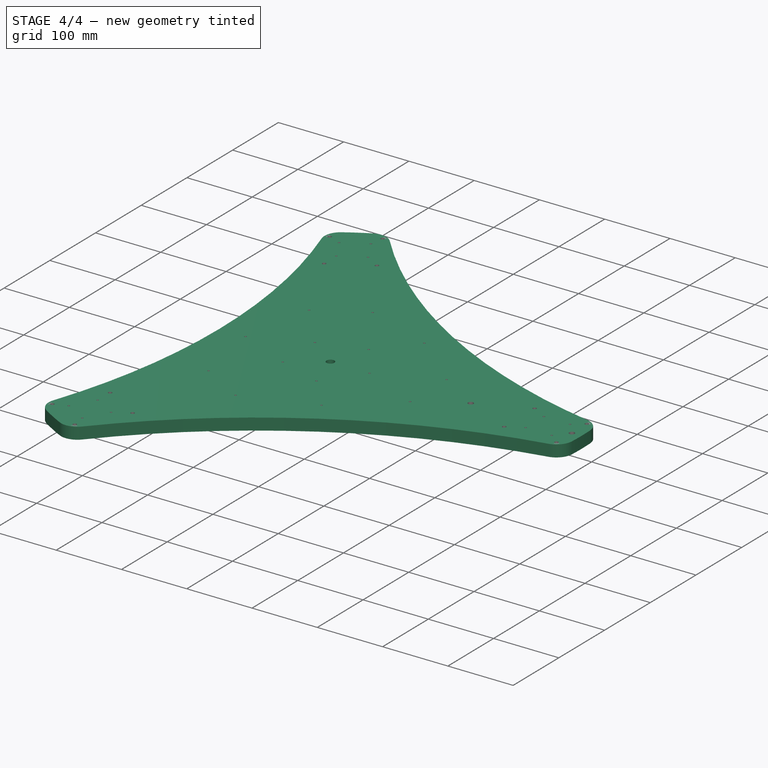
[diagram: stage 4 of 4 — iso view after this stage's code; geometry added in this stage tinted green]
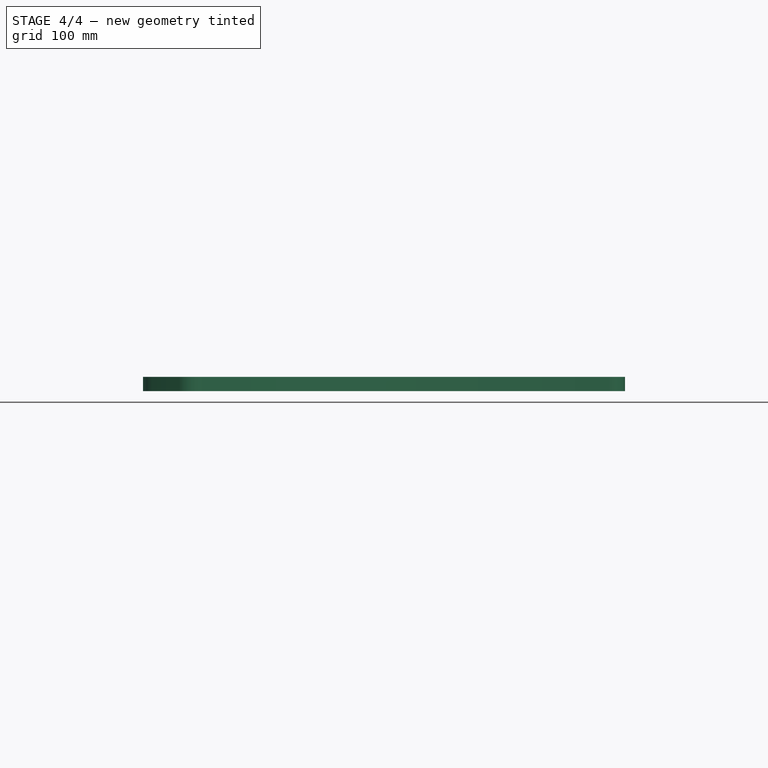
[diagram: stage 4 of 4 — front view after this stage's code; geometry added in this stage tinted green]
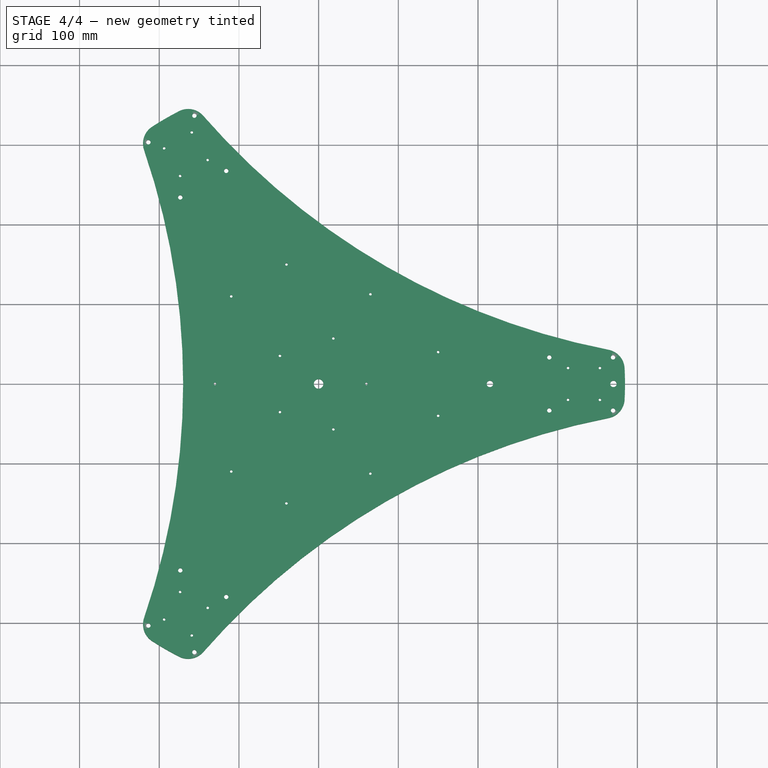
[diagram: stage 4 of 4 — top view after this stage's code; geometry added in this stage tinted green]
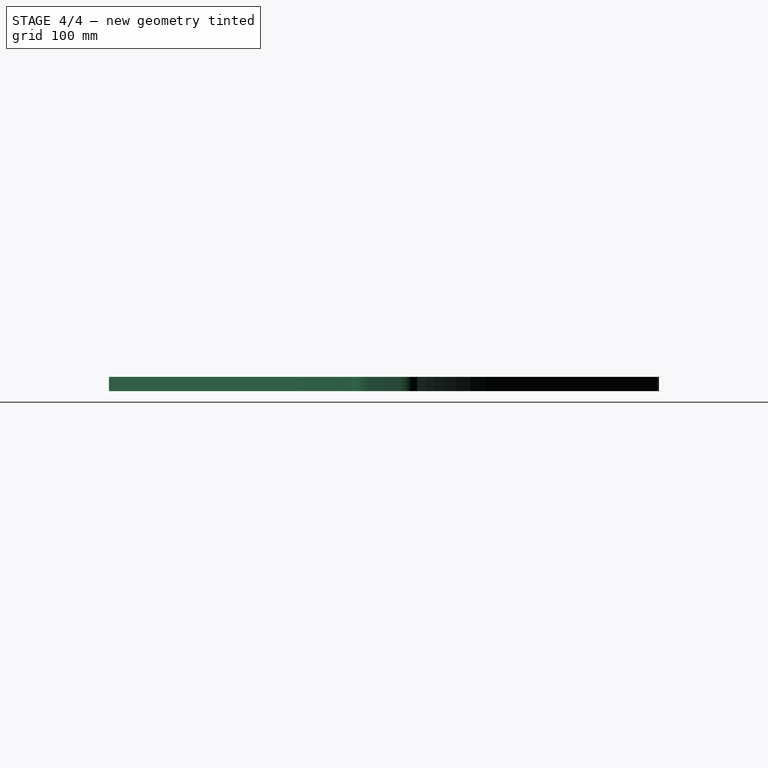
[diagram: stage 4 of 4 — right view after this stage's code; geometry added in this stage tinted green]
FEATURE [PartDesign::SubShapeBinder] Binder
  BindCopyOnChange = 0
  BindMode = 0
  ClaimChildren = true
  Fuse = false
  MakeFace = true
  OffsetFill = false
  OffsetIntersection = false
  OffsetJoinType = 0
  OffsetOpenResult = false
  PartialLoad = false
  Relative = true
  Support = -> [<external composit_stand3_basement_bottom_main.FCStd>#Sketch]
  _Version = 2
FEATURE [Part::Mirroring] Part__Mirroring  label="Binder (Mirror #1)"
  Base = (0,0,0)
  Normal = (0,1,0)
  Source = -> Binder
FEATURE [Part::Compound] Compound
  Links = -> [Binder,Part__Mirroring]
FEATURE [Part::FeaturePython] PolarArray  # WARN: FeaturePython — macro-defined, semantics opaque (R4)
  Alignment = 0
  AttacherType = Attacher::AttachEngine3D
  CellStart = A1
  Count = 3
  DistributionLaw = 0
  EndInclusive = false
  ExposePlacement = false
  FlipX = false
  FlipZ = false
  GeneratorMode = 0
  MarkerShape = 1
  MarkerSize = 0
  NumElements = 3
  OrientMode = 2
  Radius = 25
  Reverse = false
  SpanEnd = 360
  SpanStart = 0
  Step = 120
  Type = lattice2PolarArray2.PolarArray
  UseArcRadius = false
  UseArcRange = 0
  VSGVersion = 1
  Values = 0.0 | 120.0 | 240.0
  ValuesSource = 2
  isLattice = 1
FEATURE [Part::FeaturePython] Populate  label="Populate PolarArray with Compound"  # WARN: FeaturePython — macro-defined, semantics opaque (R4)
  Copying = 0
  ExposePlacement = false
  MarkerShape = 1
  MarkerSize = 0
  NumElements = 0
  Object = -> Compound
  OutputCompounding = 1
  PlacementsTo = -> PolarArray
  Referencing = 1
  Type = lattice2PopulateCopies.LatticePopulateCopies
  isLattice = 0
FEATURE [Part::FeaturePython] Connect  # WARN: FeaturePython — macro-defined, semantics opaque (R4)
  Objects = -> [Populate]
  Tolerance = 0
FEATURE [PartDesign::SubShapeBinder] Binder001
  BindCopyOnChange = 0
  BindMode = 0
  ClaimChildren = true
  Context = -> Body [Binder001.]
  Fuse = false
  MakeFace = false
  OffsetFill = false
  OffsetIntersection = false
  OffsetJoinType = 0
  OffsetOpenResult = false
  PartialLoad = false
  Relative = false
  Support = -> [Connect]
  _Version = 2
FEATURE [PartDesign::Pad] Pad
  Direction = (0,0,1)
  Length = 18
  Length2 = 10
  Profile = -> Binder001
  Refine = true
  Suppressed = false
  Type = 0
FEATURE [Part::MultiFuse] Fusion
  Shapes = -> [Populate001,Link001,Body002,Populate002,Populate006,Populate009,Populate011]
FEATURE [PartDesign::Boolean] Boolean
  BaseFeature = -> Pad
  Group = -> [Fusion]
  Suppressed = false
  Type = 1
  UsePlacement = true
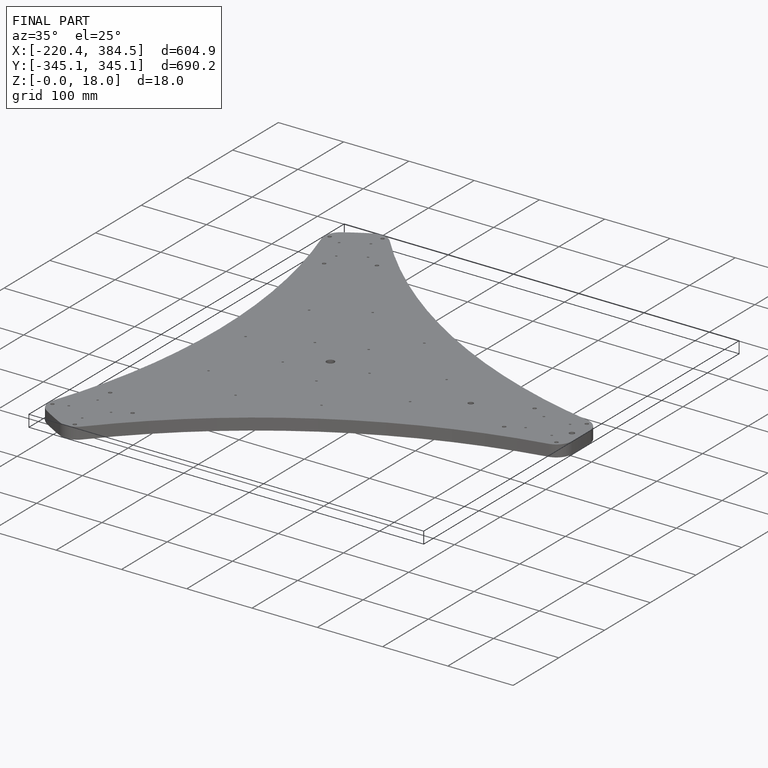
[diagram: finished part — iso view with bounding-box wireframe]
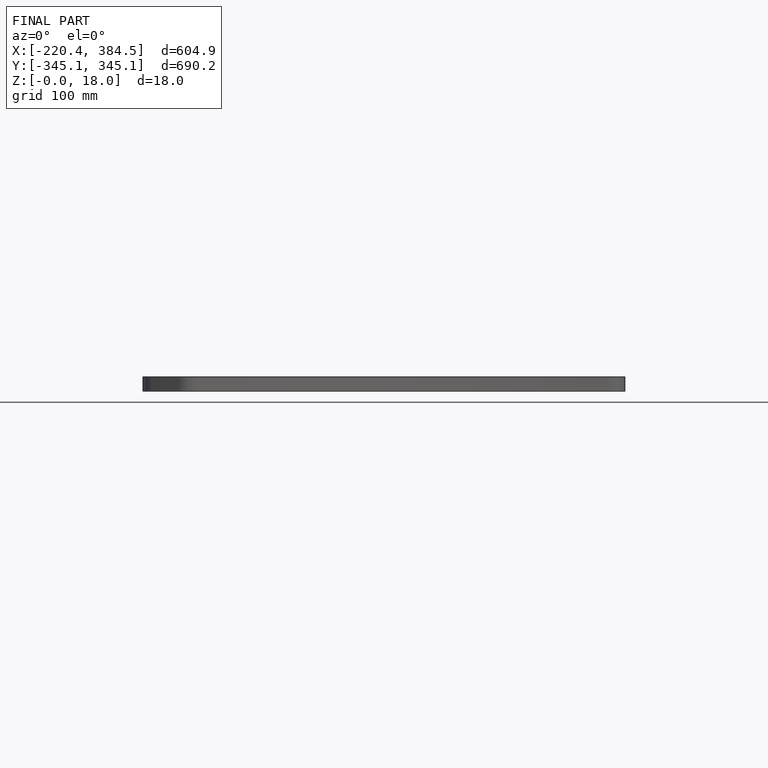
[diagram: finished part — front view with bounding-box wireframe]
